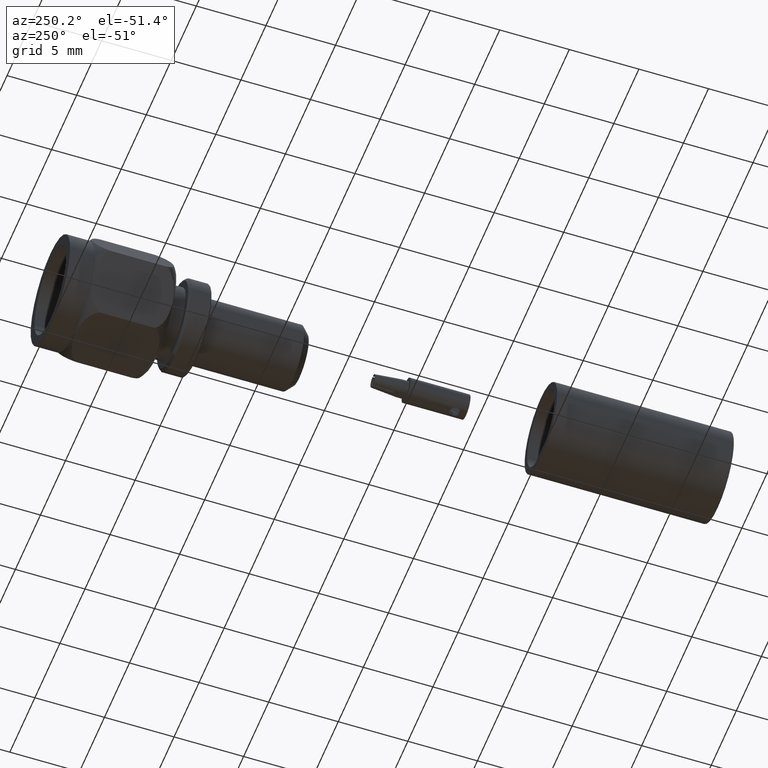
[diagram: clean part render]
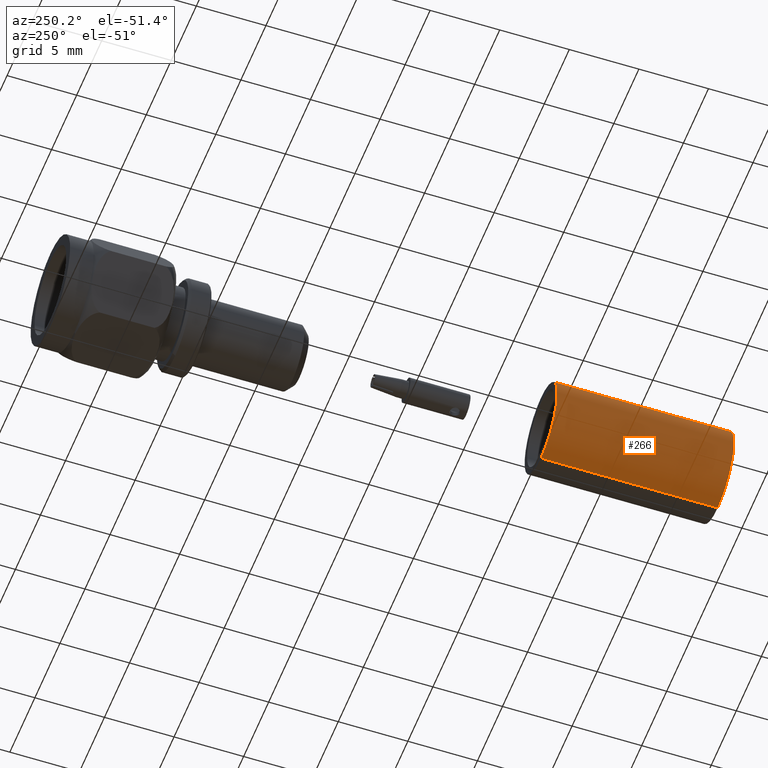
[diagram: same view with one face highlighted and labeled with its STEP entity id]
A machine part, auxiliary view. The second image highlights one B-rep face of the part: STEP entity #266.
In plain terms, the highlighted cylindrical surface (partial cylindrical patch) has radius 3.2512 mm, axis along (-0, -1, -0).
Its self-contained STEP definition (entity closure, byte-faithful):
#13 = CARTESIAN_POINT ( 'NONE',  ( 1.567547902908612300E-017, -0.2500000000000000000, 0.1280000000000000000 ) ) ;
#44 = VERTEX_POINT ( 'NONE', #13 ) ;
#64 = ORIENTED_EDGE ( 'NONE', *, *, #206, .F. ) ;
#185 = VECTOR ( 'NONE', #187, 39.37007874015748100 ) ;
#187 = DIRECTION ( 'NONE',  ( -0.0000000000000000000, -1.000000000000000000, -0.0000000000000000000 ) ) ;
#188 = CARTESIAN_POINT ( 'NONE',  ( 1.567547902908612300E-017, 0.2500000000000000000, 0.1280000000000000000 ) ) ;
#189 = LINE ( 'NONE', #188, #185 ) ;
#190 = CARTESIAN_POINT ( 'NONE',  ( 0.0000000000000000000, -0.2500000000000000000, -0.1280000000000000000 ) ) ;
#205 = VERTEX_POINT ( 'NONE', #190 ) ;
#206 = EDGE_CURVE ( 'NONE', #251, #44, #189, .T. ) ;
#241 = ORIENTED_EDGE ( 'NONE', *, *, #260, .T. ) ;
#242 = EDGE_LOOP ( 'NONE', ( #64, #267, #269, #241 ) ) ;
#251 = VERTEX_POINT ( 'NONE', #295 ) ;
#252 = VERTEX_POINT ( 'NONE', #288 ) ;
#257 = EDGE_CURVE ( 'NONE', #252, #205, #377, .T. ) ;
#260 = EDGE_CURVE ( 'NONE', #205, #44, #297, .T. ) ;
#265 = EDGE_CURVE ( 'NONE', #252, #251, #371, .T. ) ;
#266 = ADVANCED_FACE ( 'NONE', ( #289 ), #346, .T. ) ;
#267 = ORIENTED_EDGE ( 'NONE', *, *, #265, .F. ) ;
#269 = ORIENTED_EDGE ( 'NONE', *, *, #257, .T. ) ;
#285 = CARTESIAN_POINT ( 'NONE',  ( 0.0000000000000000000, 0.2500000000000000000, -0.1280000000000000000 ) ) ;
#288 = CARTESIAN_POINT ( 'NONE',  ( 0.0000000000000000000, 0.2500000000000000000, -0.1280000000000000000 ) ) ;
#289 = FACE_OUTER_BOUND ( 'NONE', #242, .T. ) ;
#295 = CARTESIAN_POINT ( 'NONE',  ( 1.567547902908612300E-017, 0.2500000000000000000, 0.1280000000000000000 ) ) ;
#297 = CIRCLE ( 'NONE', #372, 0.1280000000000000000 ) ;
#346 = CYLINDRICAL_SURFACE ( 'NONE', #358, 0.1280000000000000000 ) ;
#350 = DIRECTION ( 'NONE',  ( -0.0000000000000000000, -1.000000000000000000, -0.0000000000000000000 ) ) ;
#351 = DIRECTION ( 'NONE',  ( 0.0000000000000000000, 0.0000000000000000000, 1.000000000000000000 ) ) ;
#352 = DIRECTION ( 'NONE',  ( 0.0000000000000000000, 1.000000000000000000, 0.0000000000000000000 ) ) ;
#353 = CARTESIAN_POINT ( 'NONE',  ( 0.0000000000000000000, 0.2500000000000000000, 0.0000000000000000000 ) ) ;
#354 = AXIS2_PLACEMENT_3D ( 'NONE', #353, #352, #351 ) ;
#355 = DIRECTION ( 'NONE',  ( 0.0000000000000000000, 0.0000000000000000000, -1.000000000000000000 ) ) ;
#358 = AXIS2_PLACEMENT_3D ( 'NONE', #359, #350, #355 ) ;
#359 = CARTESIAN_POINT ( 'NONE',  ( 0.0000000000000000000, 0.2500000000000000000, 0.0000000000000000000 ) ) ;
#362 = DIRECTION ( 'NONE',  ( 0.0000000000000000000, 0.0000000000000000000, 1.000000000000000000 ) ) ;
#363 = DIRECTION ( 'NONE',  ( 0.0000000000000000000, 1.000000000000000000, 0.0000000000000000000 ) ) ;
#364 = CARTESIAN_POINT ( 'NONE',  ( 0.0000000000000000000, -0.2500000000000000000, 0.0000000000000000000 ) ) ;
#369 = DIRECTION ( 'NONE',  ( -0.0000000000000000000, -1.000000000000000000, -0.0000000000000000000 ) ) ;
#370 = VECTOR ( 'NONE', #369, 39.37007874015748100 ) ;
#371 = CIRCLE ( 'NONE', #354, 0.1280000000000000000 ) ;
#372 = AXIS2_PLACEMENT_3D ( 'NONE', #364, #363, #362 ) ;
#377 = LINE ( 'NONE', #285, #370 ) ;